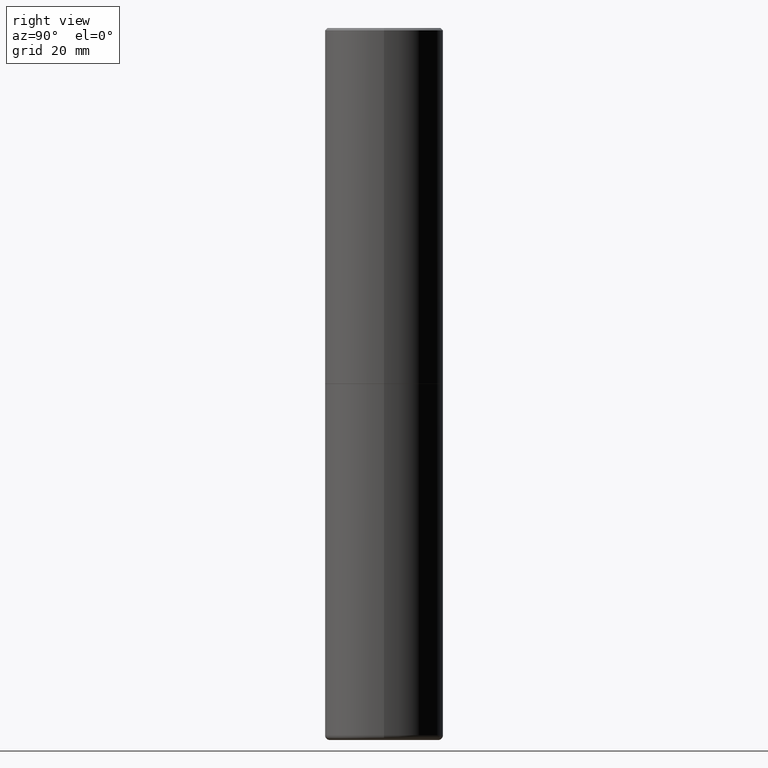
[diagram: clean part render]
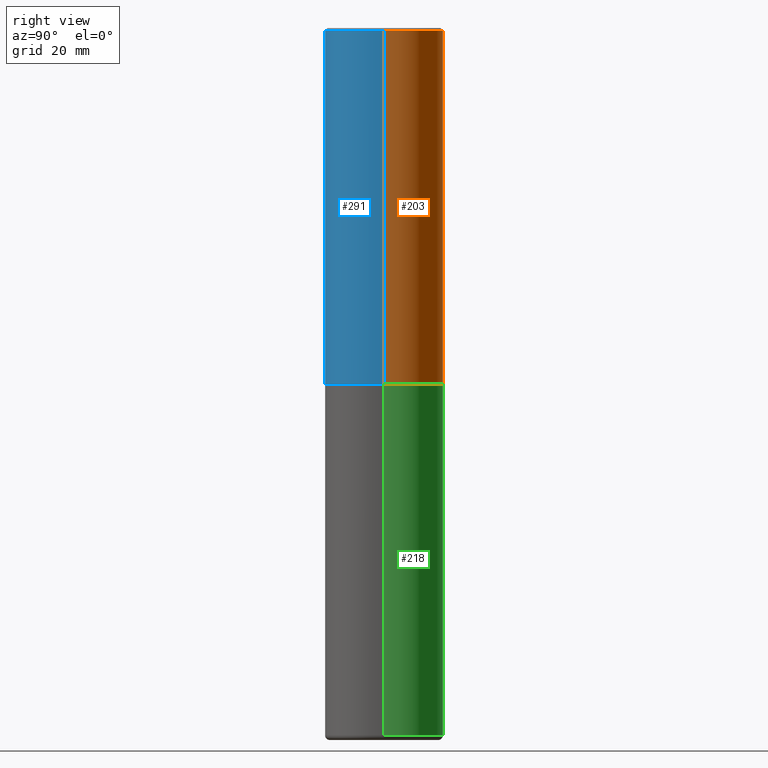
[diagram: same view with three faces highlighted in distinct colors, each labeled with its STEP entity id]
A machine part, right view with three faces highlighted in distinct colors.
Their STEP definitions:

[orange] entity #203 — the highlighted cylindrical surface (partial cylindrical patch) has radius 12.5006 mm, axis along (-0, 0, 1).
#7 = CARTESIAN_POINT ( 'NONE',  ( -0.4921499999999999764, 3.366835455046432478E-15, -0.02000000000000010797 ) ) ;
#17 = AXIS2_PLACEMENT_3D ( 'NONE', #143, #330, #264 ) ;
#29 = ORIENTED_EDGE ( 'NONE', *, *, #187, .T. ) ;
#62 = VERTEX_POINT ( 'NONE', #181 ) ;
#63 = CARTESIAN_POINT ( 'NONE',  ( 0.000000000000000000, 0.000000000000000000, 0.000000000000000000 ) ) ;
#88 = VERTEX_POINT ( 'NONE', #161 ) ;
#96 = CYLINDRICAL_SURFACE ( 'NONE', #335, 0.4921500000000000874 ) ;
#103 = EDGE_CURVE ( 'NONE', #88, #62, #389, .T. ) ;
#118 = DIRECTION ( 'NONE',  ( -2.445468806185136877E-29, 3.491481338843145188E-15, 1.000000000000000000 ) ) ;
#126 = EDGE_LOOP ( 'NONE', ( #29, #155, #290, #405 ) ) ;
#133 = DIRECTION ( 'NONE',  ( 1.000000000000000000, -6.982962677686265922E-15, 4.876176775795935793E-29 ) ) ;
#143 = CARTESIAN_POINT ( 'NONE',  ( 4.890937612370299433E-31, -6.982962677686328587E-17, -0.02000000000000010797 ) ) ;
#155 = ORIENTED_EDGE ( 'NONE', *, *, #294, .T. ) ;
#156 = DIRECTION ( 'NONE',  ( 1.000000000000000000, -6.982962677686265922E-15, 0.000000000000000000 ) ) ;
#158 = VERTEX_POINT ( 'NONE', #193 ) ;
#161 = CARTESIAN_POINT ( 'NONE',  ( 0.4921500000000003094, -1.374247054968661252E-14, -2.951700000000000212 ) ) ;
#181 = CARTESIAN_POINT ( 'NONE',  ( 0.4921499999999999764, -3.446223716380122349E-15, -0.02000000000000010797 ) ) ;
#187 = EDGE_CURVE ( 'NONE', #88, #158, #349, .T. ) ;
#193 = CARTESIAN_POINT ( 'NONE',  ( -0.4921500000000003094, -1.690881473276751010E-15, -2.951700000000000212 ) ) ;
#203 = ADVANCED_FACE ( 'NONE', ( #375 ), #96, .T. ) ;
#238 = CARTESIAN_POINT ( 'NONE',  ( -0.4921500000000000874, 3.496936074043333686E-15, -2.420853904668952350E-29 ) ) ;
#264 = DIRECTION ( 'NONE',  ( 1.000000000000000000, -6.982962677686265922E-15, 0.000000000000000000 ) ) ;
#266 = DIRECTION ( 'NONE',  ( -2.445468806185136877E-29, 3.491481338843145188E-15, 1.000000000000000000 ) ) ;
#274 = AXIS2_PLACEMENT_3D ( 'NONE', #323, #413, #156 ) ;
#290 = ORIENTED_EDGE ( 'NONE', *, *, #350, .F. ) ;
#294 = EDGE_CURVE ( 'NONE', #158, #320, #299, .T. ) ;
#298 = VECTOR ( 'NONE', #266, 39.37007874015748143 ) ;
#299 = LINE ( 'NONE', #238, #298 ) ;
#320 = VERTEX_POINT ( 'NONE', #7 ) ;
#323 = CARTESIAN_POINT ( 'NONE',  ( 7.218290275216666916E-29, -1.030580546786331359E-14, -2.951700000000000212 ) ) ;
#327 = VECTOR ( 'NONE', #118, 39.37007874015748143 ) ;
#330 = DIRECTION ( 'NONE',  ( -2.445468806185136597E-29, 3.491481338843145583E-15, 1.000000000000000000 ) ) ;
#335 = AXIS2_PLACEMENT_3D ( 'NONE', #63, #414, #133 ) ;
#349 = CIRCLE ( 'NONE', #274, 0.4921500000000003094 ) ;
#350 = EDGE_CURVE ( 'NONE', #62, #320, #416, .T. ) ;
#375 = FACE_OUTER_BOUND ( 'NONE', #126, .T. ) ;
#382 = CARTESIAN_POINT ( 'NONE',  ( 0.4921500000000000874, -3.436665081823296565E-15, 2.399810400207970163E-29 ) ) ;
#389 = LINE ( 'NONE', #382, #327 ) ;
#405 = ORIENTED_EDGE ( 'NONE', *, *, #103, .F. ) ;
#413 = DIRECTION ( 'NONE',  ( -2.445468806185136597E-29, 3.491481338843145583E-15, 1.000000000000000000 ) ) ;
#414 = DIRECTION ( 'NONE',  ( -2.445468806185136597E-29, 3.491481338843145583E-15, 1.000000000000000000 ) ) ;
#416 = CIRCLE ( 'NONE', #17, 0.4921499999999999764 ) ;

[blue] entity #291 — the highlighted cylindrical surface (partial cylindrical patch) has radius 12.5006 mm, axis along (-0, 0, 1).
#7 = CARTESIAN_POINT ( 'NONE',  ( -0.4921499999999999764, 3.366835455046432478E-15, -0.02000000000000010797 ) ) ;
#41 = DIRECTION ( 'NONE',  ( 1.000000000000000000, -6.982962677686265922E-15, 4.876176775795935793E-29 ) ) ;
#49 = CARTESIAN_POINT ( 'NONE',  ( 4.890937612370299433E-31, -6.982962677686328587E-17, -0.02000000000000010797 ) ) ;
#62 = VERTEX_POINT ( 'NONE', #181 ) ;
#69 = EDGE_CURVE ( 'NONE', #320, #62, #135, .T. ) ;
#88 = VERTEX_POINT ( 'NONE', #161 ) ;
#94 = ORIENTED_EDGE ( 'NONE', *, *, #69, .F. ) ;
#99 = ORIENTED_EDGE ( 'NONE', *, *, #103, .T. ) ;
#103 = EDGE_CURVE ( 'NONE', #88, #62, #389, .T. ) ;
#118 = DIRECTION ( 'NONE',  ( -2.445468806185136877E-29, 3.491481338843145188E-15, 1.000000000000000000 ) ) ;
#135 = CIRCLE ( 'NONE', #378, 0.4921499999999999764 ) ;
#150 = ORIENTED_EDGE ( 'NONE', *, *, #294, .F. ) ;
#158 = VERTEX_POINT ( 'NONE', #193 ) ;
#161 = CARTESIAN_POINT ( 'NONE',  ( 0.4921500000000003094, -1.374247054968661252E-14, -2.951700000000000212 ) ) ;
#171 = CARTESIAN_POINT ( 'NONE',  ( 7.218290275216666916E-29, -1.030580546786331359E-14, -2.951700000000000212 ) ) ;
#181 = CARTESIAN_POINT ( 'NONE',  ( 0.4921499999999999764, -3.446223716380122349E-15, -0.02000000000000010797 ) ) ;
#193 = CARTESIAN_POINT ( 'NONE',  ( -0.4921500000000003094, -1.690881473276751010E-15, -2.951700000000000212 ) ) ;
#196 = FACE_OUTER_BOUND ( 'NONE', #309, .T. ) ;
#219 = ORIENTED_EDGE ( 'NONE', *, *, #406, .T. ) ;
#235 = CIRCLE ( 'NONE', #319, 0.4921500000000003094 ) ;
#238 = CARTESIAN_POINT ( 'NONE',  ( -0.4921500000000000874, 3.496936074043333686E-15, -2.420853904668952350E-29 ) ) ;
#242 = DIRECTION ( 'NONE',  ( -2.445468806185136597E-29, 3.491481338843145583E-15, 1.000000000000000000 ) ) ;
#266 = DIRECTION ( 'NONE',  ( -2.445468806185136877E-29, 3.491481338843145188E-15, 1.000000000000000000 ) ) ;
#273 = DIRECTION ( 'NONE',  ( 1.000000000000000000, -6.982962677686265922E-15, 0.000000000000000000 ) ) ;
#287 = CYLINDRICAL_SURFACE ( 'NONE', #399, 0.4921500000000000874 ) ;
#291 = ADVANCED_FACE ( 'NONE', ( #196 ), #287, .T. ) ;
#294 = EDGE_CURVE ( 'NONE', #158, #320, #299, .T. ) ;
#298 = VECTOR ( 'NONE', #266, 39.37007874015748143 ) ;
#299 = LINE ( 'NONE', #238, #298 ) ;
#309 = EDGE_LOOP ( 'NONE', ( #150, #219, #99, #94 ) ) ;
#314 = CARTESIAN_POINT ( 'NONE',  ( 0.000000000000000000, 0.000000000000000000, 0.000000000000000000 ) ) ;
#319 = AXIS2_PLACEMENT_3D ( 'NONE', #171, #387, #390 ) ;
#320 = VERTEX_POINT ( 'NONE', #7 ) ;
#327 = VECTOR ( 'NONE', #118, 39.37007874015748143 ) ;
#378 = AXIS2_PLACEMENT_3D ( 'NONE', #49, #242, #273 ) ;
#382 = CARTESIAN_POINT ( 'NONE',  ( 0.4921500000000000874, -3.436665081823296565E-15, 2.399810400207970163E-29 ) ) ;
#387 = DIRECTION ( 'NONE',  ( -2.445468806185136597E-29, 3.491481338843145583E-15, 1.000000000000000000 ) ) ;
#389 = LINE ( 'NONE', #382, #327 ) ;
#390 = DIRECTION ( 'NONE',  ( 1.000000000000000000, -6.982962677686265922E-15, 0.000000000000000000 ) ) ;
#399 = AXIS2_PLACEMENT_3D ( 'NONE', #314, #407, #41 ) ;
#406 = EDGE_CURVE ( 'NONE', #158, #88, #235, .T. ) ;
#407 = DIRECTION ( 'NONE',  ( -2.445468806185136597E-29, 3.491481338843145583E-15, 1.000000000000000000 ) ) ;

[green] entity #218 — the highlighted cylindrical surface (partial cylindrical patch) has radius 12.5006 mm, axis along (-0, 0, 1).
#6 = CARTESIAN_POINT ( 'NONE',  ( 0.4921499999999999764, -1.374596203102545079E-14, -2.952700000000000102 ) ) ;
#16 = AXIS2_PLACEMENT_3D ( 'NONE', #38, #393, #144 ) ;
#22 = DIRECTION ( 'NONE',  ( -2.445468806185136597E-29, 3.491481338843145583E-15, 1.000000000000000000 ) ) ;
#25 = CARTESIAN_POINT ( 'NONE',  ( -0.4921500000000000874, -1.698444260774444222E-14, -5.866100000000000314 ) ) ;
#26 = AXIS2_PLACEMENT_3D ( 'NONE', #134, #260, #130 ) ;
#27 = CARTESIAN_POINT ( 'NONE',  ( 1.434536456396262923E-28, -2.048137868178777591E-14, -5.866100000000000314 ) ) ;
#33 = LINE ( 'NONE', #259, #392 ) ;
#38 = CARTESIAN_POINT ( 'NONE',  ( 7.220735744022852519E-29, -1.030929694920215502E-14, -2.952700000000000102 ) ) ;
#59 = EDGE_CURVE ( 'NONE', #188, #170, #304, .T. ) ;
#85 = CARTESIAN_POINT ( 'NONE',  ( -0.4921499999999999764, -1.189840174145163414E-14, -2.952700000000000102 ) ) ;
#87 = VERTEX_POINT ( 'NONE', #85 ) ;
#104 = DIRECTION ( 'NONE',  ( -2.445468806185136877E-29, 3.491481338843145188E-15, 1.000000000000000000 ) ) ;
#128 = VECTOR ( 'NONE', #380, 39.37007874015748143 ) ;
#130 = DIRECTION ( 'NONE',  ( 1.000000000000000000, -6.982962677686265922E-15, 4.876176775795935793E-29 ) ) ;
#134 = CARTESIAN_POINT ( 'NONE',  ( 0.000000000000000000, 0.000000000000000000, 0.000000000000000000 ) ) ;
#144 = DIRECTION ( 'NONE',  ( 1.000000000000000000, -6.982962677686265922E-15, 0.000000000000000000 ) ) ;
#149 = CIRCLE ( 'NONE', #16, 0.4921499999999999764 ) ;
#162 = CARTESIAN_POINT ( 'NONE',  ( 0.4921500000000000874, -2.391804376361107326E-14, -5.866100000000000314 ) ) ;
#163 = LINE ( 'NONE', #374, #128 ) ;
#168 = EDGE_CURVE ( 'NONE', #170, #87, #163, .T. ) ;
#170 = VERTEX_POINT ( 'NONE', #25 ) ;
#188 = VERTEX_POINT ( 'NONE', #162 ) ;
#214 = ORIENTED_EDGE ( 'NONE', *, *, #59, .T. ) ;
#218 = ADVANCED_FACE ( 'NONE', ( #222 ), #346, .T. ) ;
#220 = EDGE_LOOP ( 'NONE', ( #214, #344, #279, #400 ) ) ;
#222 = FACE_OUTER_BOUND ( 'NONE', #220, .T. ) ;
#239 = EDGE_CURVE ( 'NONE', #188, #338, #33, .T. ) ;
#259 = CARTESIAN_POINT ( 'NONE',  ( 0.4921499999999999764, -3.436665081823295777E-15, 2.399810400207969603E-29 ) ) ;
#260 = DIRECTION ( 'NONE',  ( -2.445468806185136597E-29, 3.491481338843145583E-15, 1.000000000000000000 ) ) ;
#279 = ORIENTED_EDGE ( 'NONE', *, *, #307, .F. ) ;
#304 = CIRCLE ( 'NONE', #311, 0.4921499999999999764 ) ;
#307 = EDGE_CURVE ( 'NONE', #338, #87, #149, .T. ) ;
#311 = AXIS2_PLACEMENT_3D ( 'NONE', #27, #22, #337 ) ;
#337 = DIRECTION ( 'NONE',  ( 1.000000000000000000, -6.982962677686265922E-15, 0.000000000000000000 ) ) ;
#338 = VERTEX_POINT ( 'NONE', #6 ) ;
#344 = ORIENTED_EDGE ( 'NONE', *, *, #168, .T. ) ;
#346 = CYLINDRICAL_SURFACE ( 'NONE', #26, 0.4921499999999999764 ) ;
#374 = CARTESIAN_POINT ( 'NONE',  ( -0.4921499999999999764, 3.496936074043332897E-15, -2.420853904668951509E-29 ) ) ;
#380 = DIRECTION ( 'NONE',  ( -2.445468806185136877E-29, 3.491481338843145188E-15, 1.000000000000000000 ) ) ;
#392 = VECTOR ( 'NONE', #104, 39.37007874015748143 ) ;
#393 = DIRECTION ( 'NONE',  ( -2.445468806185136597E-29, 3.491481338843145583E-15, 1.000000000000000000 ) ) ;
#400 = ORIENTED_EDGE ( 'NONE', *, *, #239, .F. ) ;